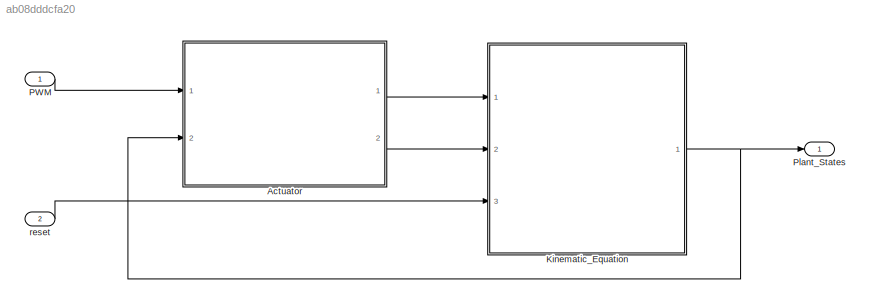
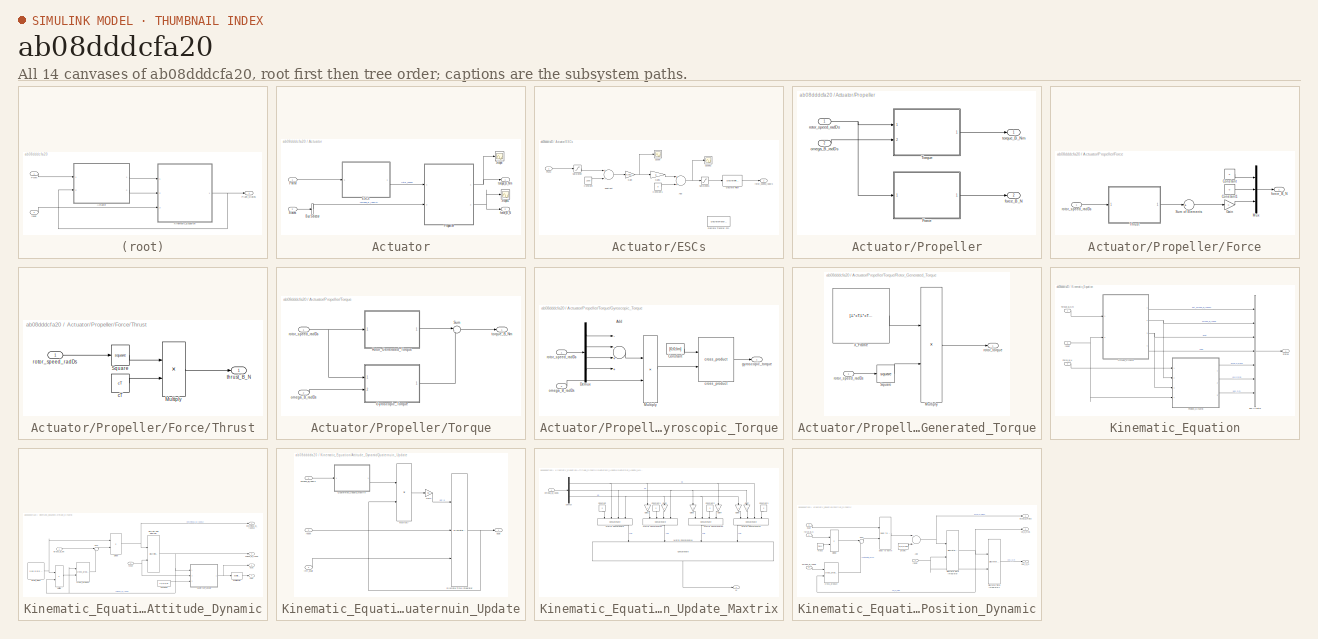
[diagram: thumbnail index - all 14 canvases of the model, root first then tree order]
MODEL slx_ab08dddcfa20
KIND model
CONFIG AbsTol = auto
CONFIG EnableMultiTasking = off
CONFIG FixedStep = auto
CONFIG MaxStep = auto
CONFIG MinStep = auto
CONFIG RelTol = 1e-3
CONFIG SampleTimeConstraint = Unconstrained
CONFIG Solver = VariableStepAuto
CONFIG SolverName = VariableStepAuto
CONFIG StartTime = 0.0
CONFIG StopTime = 10.0
BLOCK [SubSystem] Actuator
  Ports = [2, 2]
  RequestExecContextInheritance = off
BLOCK [BusSelector] Actuator/Bus Selector
  OutputAsBus = off
  OutputSignals = omega_B_radDs
  Ports = [1, 1]
BLOCK [SubSystem] Actuator/ESCs
  Ports = [1, 1]
  RequestExecContextInheritance = off
BLOCK [Sum] Actuator/ESCs/Add
  AccumDataTypeStr = Inherit: Same as first input
  InputSameDT = off
  OutDataTypeStr = Inherit: Inherit via internal rule
  Ports = [2, 1]
  SaturateOnIntegerOverflow = off
BLOCK [Constant] Actuator/ESCs/Constant
  OutDataTypeStr = uint16
  Value = 1000
BLOCK [Constant] Actuator/ESCs/Constant1
  OutDataTypeStr = single
  Value = p
BLOCK [DiscreteFilter] Actuator/ESCs/Discrete Filter
  Denominator = [1 T]
  InputPortMap = u0
  Ports = [1, 1]
BLOCK [DiscreteTransferFcn] Actuator/ESCs/Discrete Transfer Fcn
  Commented = on
  Denominator = [T 1]
  InputPortMap = u0
  OutDataTypeStr = Inherit: Same as input
  Ports = [1, 1]
BLOCK [Gain] Actuator/ESCs/Gain
  Gain = 0.001
  OutDataTypeStr = single
  ParamDataTypeStr = Inherit: Inherit via internal rule
  SaturateOnIntegerOverflow = off
BLOCK [Gain] Actuator/ESCs/Gain1
  Gain = k
  ParamDataTypeStr = Inherit: Inherit via internal rule
  SaturateOnIntegerOverflow = off
BLOCK [Inport] Actuator/ESCs/PWM
  IconDisplay = Port number
BLOCK [Saturate] Actuator/ESCs/Saturation
  InputPortMap = u0
  LowerLimit = 1000
  Ports = [1, 1]
  UpperLimit = 2000
BLOCK [Saturate] Actuator/ESCs/Saturation1
  InputPortMap = u0
  LowerLimit = 0
  Ports = [1, 1]
  UpperLimit = 9999999
BLOCK [Scope] Actuator/ESCs/Scope
  Floating = off
  NumInputPorts = 1
  Ports = [1]
  ScopeSpecificationString = Simulink.scopes.TimeScopeBlockCfg('CurrentConfiguration', extmgr.ConfigurationSet(extmgr.Configuration('Core','General UI',true),extmgr.Configuration('Core','Source UI',true),extmgr.Configuration('Sources','WiredSimulink',true),extmgr.Configuration('Visuals','Time Domain',true,'SerializedDisplays',{struct('MinYLimReal','0.48749','MaxYLimReal','0.61249','YLabelReal','','MinYLimMag','0.48749','MaxYL...<+1465ch>
BLOCK [Scope] Actuator/ESCs/Scope2
  Floating = off
  NumInputPorts = 1
  Ports = [1]
  ScopeSpecificationString = Simulink.scopes.TimeScopeBlockCfg('CurrentConfiguration', extmgr.ConfigurationSet(extmgr.Configuration('Core','General UI',true),extmgr.Configuration('Core','Source UI',true),extmgr.Configuration('Sources','WiredSimulink',true,'DataLoggingVariableName','ScopeData2'),extmgr.Configuration('Visuals','Time Domain',true,'SerializedDisplays',{struct('MinYLimReal','438.50653','MaxYLimReal','528.2651','YL...<+1429ch>
BLOCK [Sum] Actuator/ESCs/Subtract
  AccumDataTypeStr = Inherit: Same as first input
  InputSameDT = off
  Inputs = +-
  OutDataTypeStr = Inherit: Same as accumulator
  Ports = [2, 1]
  SaturateOnIntegerOverflow = off
BLOCK [Outport] Actuator/ESCs/rotor_speed_radDs
  IconDisplay = Port number
BLOCK [Inport] Actuator/PWM
  IconDisplay = Port number
BLOCK [SubSystem] Actuator/Propeller
  Ports = [2, 2]
  RequestExecContextInheritance = off
BLOCK [SubSystem] Actuator/Propeller/Force
  Ports = [1, 1]
  RequestExecContextInheritance = off
BLOCK [Constant] Actuator/Propeller/Force/Constant
  OutDataTypeStr = single
  Value = 0
BLOCK [Constant] Actuator/Propeller/Force/Constant1
  OutDataTypeStr = single
  Value = 0
BLOCK [Gain] Actuator/Propeller/Force/Gain
  Gain = -1
  ParamDataTypeStr = Inherit: Inherit via internal rule
  SaturateOnIntegerOverflow = off
BLOCK [Mux] Actuator/Propeller/Force/Mux
  DisplayOption = bar
  Inputs = 3
  Ports = [3, 1]
BLOCK [Sum] Actuator/Propeller/Force/Sum of Elements
  AccumDataTypeStr = Inherit: Same as first input
  InputSameDT = off
  Inputs = +
  OutDataTypeStr = Inherit: Inherit via internal rule
  Ports = [1, 1]
  SaturateOnIntegerOverflow = off
BLOCK [SubSystem] Actuator/Propeller/Force/Thrust
  Ports = [1, 1]
  RequestExecContextInheritance = off
BLOCK [Product] Actuator/Propeller/Force/Thrust/Multiply
  InputSameDT = off
  Ports = [2, 1]
  RndMeth = Floor
  SaturateOnIntegerOverflow = off
BLOCK [Math] Actuator/Propeller/Force/Thrust/Square
  Operator = square
  Ports = [1, 1]
BLOCK [Constant] Actuator/Propeller/Force/Thrust/cT
  Value = cT
BLOCK [Inport] Actuator/Propeller/Force/Thrust/rotor_speed_radDs
  IconDisplay = Port number
BLOCK [Outport] Actuator/Propeller/Force/Thrust/thrust_B_N
  IconDisplay = Port number
BLOCK [Outport] Actuator/Propeller/Force/force_B_N
  IconDisplay = Port number
BLOCK [Inport] Actuator/Propeller/Force/rotor_speed_radDs
  IconDisplay = Port number
BLOCK [SubSystem] Actuator/Propeller/Torque
  Ports = [2, 1]
  RequestExecContextInheritance = off
BLOCK [SubSystem] Actuator/Propeller/Torque/Gyroscopic_Torque
  Ports = [2, 1]
  RequestExecContextInheritance = off
BLOCK [Sum] Actuator/Propeller/Torque/Gyroscopic_Torque/Add
  InputSameDT = off
  Inputs = --++
  OutDataTypeStr = Inherit: Inherit via internal rule
  Ports = [4, 1]
  SaturateOnIntegerOverflow = off
BLOCK [Constant] Actuator/Propeller/Torque/Gyroscopic_Torque/Constant
  OutDataTypeStr = single
  Value = [0;0;Im]
BLOCK [Demux] Actuator/Propeller/Torque/Gyroscopic_Torque/Demux
  DisplayOption = bar
  Ports = [1, 4]
BLOCK [Product] Actuator/Propeller/Torque/Gyroscopic_Torque/Multiply
  InputSameDT = off
  OutDataTypeStr = Inherit: Inherit via internal rule
  Ports = [2, 1]
  RndMeth = Floor
  SaturateOnIntegerOverflow = off
BLOCK [Reference] Actuator/Propeller/Torque/Gyroscopic_Torque/cross_product  REF=AP_Math/cross_product
  Ports = [2, 1]
  SourceBlock = AP_Math/cross_product
  SourceType = SubSystem
BLOCK [Outport] Actuator/Propeller/Torque/Gyroscopic_Torque/gyroscopic_torque
  IconDisplay = Port number
BLOCK [Inport] Actuator/Propeller/Torque/Gyroscopic_Torque/omega_B_radDs
  IconDisplay = Port number
  Port = 2
BLOCK [Inport] Actuator/Propeller/Torque/Gyroscopic_Torque/rotor_speed_radDs
  IconDisplay = Port number
BLOCK [SubSystem] Actuator/Propeller/Torque/Rotor_Generated_Torque
  Ports = [1, 1]
  RequestExecContextInheritance = off
BLOCK [Product] Actuator/Propeller/Torque/Rotor_Generated_Torque/Multiply
  InputSameDT = off
  Multiplication = Matrix(*)
  OutDataTypeStr = Inherit: Inherit via internal rule
  Ports = [2, 1]
  RndMeth = Floor
  SaturateOnIntegerOverflow = off
BLOCK [Math] Actuator/Propeller/Torque/Rotor_Generated_Torque/Square
  Operator = square
  Ports = [1, 1]
BLOCK [Constant] Actuator/Propeller/Torque/Rotor_Generated_Torque/X_Frame
  OutDataTypeStr = single
  Value = [-L*cT,L*cT,L*cT,-L*cT;L*cT,-L*cT,L*cT,-L*cT;cQ,cQ,-cQ,-cQ]
BLOCK [Inport] Actuator/Propeller/Torque/Rotor_Generated_Torque/rotor_speed_radDs
  IconDisplay = Port number
BLOCK [Outport] Actuator/Propeller/Torque/Rotor_Generated_Torque/rotor_torque
  IconDisplay = Port number
BLOCK [Sum] Actuator/Propeller/Torque/Sum
  IconShape = round
  InputSameDT = off
  Inputs = |++
  OutDataTypeStr = Inherit: Inherit via internal rule
  Ports = [2, 1]
  SaturateOnIntegerOverflow = off
BLOCK [Inport] Actuator/Propeller/Torque/omega_B_radDs
  IconDisplay = Port number
  Port = 2
BLOCK [Inport] Actuator/Propeller/Torque/rotor_speed_radDs
  IconDisplay = Port number
BLOCK [Outport] Actuator/Propeller/Torque/torque_B_Nm
  IconDisplay = Port number
BLOCK [Outport] Actuator/Propeller/force_B_N
  IconDisplay = Port number
  Port = 2
BLOCK [Inport] Actuator/Propeller/omega_B_radDs
  IconDisplay = Port number
  Port = 2
BLOCK [Inport] Actuator/Propeller/rotor_speed_radDs
  IconDisplay = Port number
BLOCK [Outport] Actuator/Propeller/torque_B_Nm
  IconDisplay = Port number
BLOCK [Scope] Actuator/Scope
  Floating = off
  NumInputPorts = 1
  Ports = [1]
  ScopeSpecificationString = Simulink.scopes.TimeScopeBlockCfg('CurrentConfiguration', extmgr.ConfigurationSet(extmgr.Configuration('Core','General UI',true),extmgr.Configuration('Core','Source UI',true),extmgr.Configuration('Sources','WiredSimulink',true,'DataLoggingVariableName','ScopeData1'),extmgr.Configuration('Visuals','Time Domain',true,'SerializedDisplays',{struct('MinYLimReal','-42737826572724298842112.00000','MaxYLi...<+1723ch>
BLOCK [Scope] Actuator/Scope1
  Floating = off
  NumInputPorts = 1
  Ports = [1]
  ScopeSpecificationString = Simulink.scopes.TimeScopeBlockCfg('CurrentConfiguration', extmgr.ConfigurationSet(extmgr.Configuration('Core','General UI',true),extmgr.Configuration('Core','Source UI',true),extmgr.Configuration('Sources','WiredSimulink',true,'DataLoggingVariableName','ScopeData3'),extmgr.Configuration('Visuals','Time Domain',true,'SerializedDisplays',{struct('MinYLimReal','-1370922749869579606649809372446720.000...<+1786ch>
BLOCK [Inport] Actuator/States
  IconDisplay = Port number
  Port = 2
BLOCK [Outport] Actuator/force_B_N
  IconDisplay = Port number
  Port = 2
BLOCK [Outport] Actuator/torque_B_Nm
  IconDisplay = Port number
BLOCK [SubSystem] Kinematic_Equation
  Ports = [3, 1]
  RequestExecContextInheritance = off
BLOCK [SubSystem] Kinematic_Equation/Attitude_Dynamic
  Ports = [2, 4]
  RequestExecContextInheritance = off
BLOCK [Constant] Kinematic_Equation/Attitude_Dynamic/Constant1
  OutDataTypeStr = single
  Value = [1;0;0;0]
BLOCK [DiscreteIntegrator] Kinematic_Equation/Attitude_Dynamic/Discrete-Time Integrator
  ExternalReset = level
  ICPrevOutput = DiscIntNeverNeededParam
  ICPrevScaledInput = DiscIntNeverNeededParam
  InitialCondition = [0;0;0]
  InitialConditionSetting = Auto
  Ports = [2, 1]
  SampleTime = -1
BLOCK [Product] Kinematic_Equation/Attitude_Dynamic/Divide
  InputSameDT = off
  Inputs = /*
  Multiplication = Matrix(*)
  Ports = [2, 1]
  RndMeth = Floor
  SaturateOnIntegerOverflow = off
BLOCK [Constant] Kinematic_Equation/Attitude_Dynamic/Inertia_Matrix
  OutDataTypeStr = single
  Value = [Ixx 0 0;0 Iyy 0;0 0 Izz]
BLOCK [Product] Kinematic_Equation/Attitude_Dynamic/Multiply
  InputSameDT = off
  Multiplication = Matrix(*)
  Ports = [2, 1]
  RndMeth = Floor
  SaturateOnIntegerOverflow = off
BLOCK [SubSystem] Kinematic_Equation/Attitude_Dynamic/Quaternuin_Update
  Ports = [3, 1]
  RequestExecContextInheritance = off
BLOCK [DiscreteIntegrator] Kinematic_Equation/Attitude_Dynamic/Quaternuin_Update/Discrete-Time Integrator
  ExternalReset = level
  ICPrevOutput = DiscIntNeverNeededParam
  ICPrevScaledInput = DiscIntNeverNeededParam
  InitialConditionSetting = Auto
  InitialConditionSource = external
  Ports = [3, 1]
  SampleTime = -1
BLOCK [Gain] Kinematic_Equation/Attitude_Dynamic/Quaternuin_Update/Gain
  Gain = 0.5
  ParamDataTypeStr = Inherit: Inherit via internal rule
  SaturateOnIntegerOverflow = off
BLOCK [Product] Kinematic_Equation/Attitude_Dynamic/Quaternuin_Update/Multiply
  InputSameDT = off
  Multiplication = Matrix(*)
  Ports = [2, 1]
  RndMeth = Floor
  SaturateOnIntegerOverflow = off
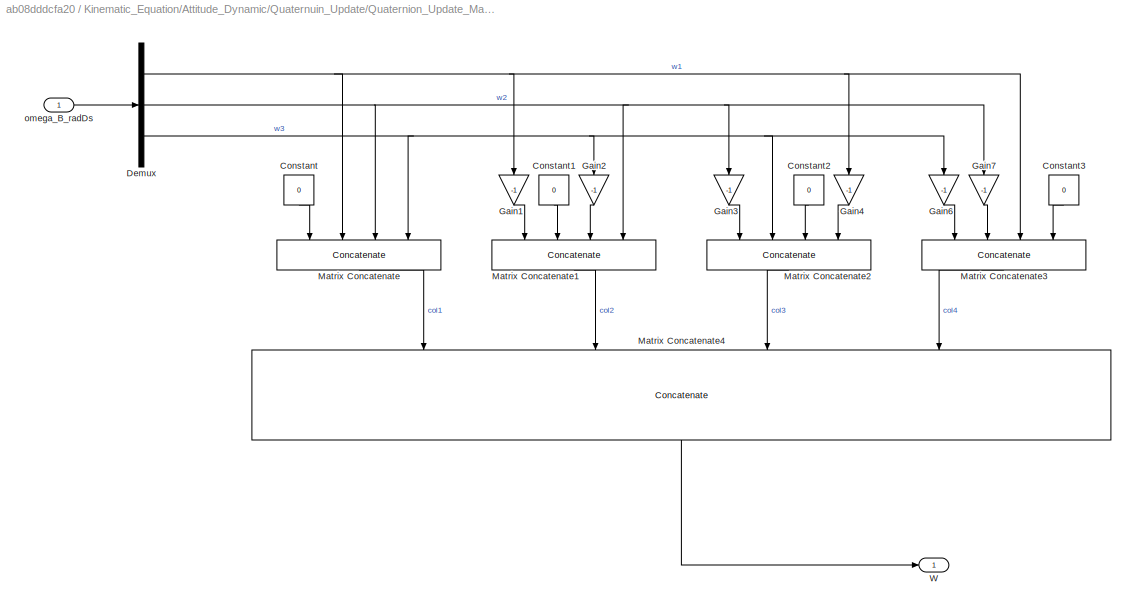
BLOCK [SubSystem] Kinematic_Equation/Attitude_Dynamic/Quaternuin_Update/Quaternion_Update_Maxtrix
  Ports = [1, 1]
  RequestExecContextInheritance = off
BLOCK [Constant] Kinematic_Equation/Attitude_Dynamic/Quaternuin_Update/Quaternion_Update_Maxtrix/Constant
  OutDataTypeStr = single
  Value = 0
BLOCK [Constant] Kinematic_Equation/Attitude_Dynamic/Quaternuin_Update/Quaternion_Update_Maxtrix/Constant1
  OutDataTypeStr = single
  Value = 0
BLOCK [Constant] Kinematic_Equation/Attitude_Dynamic/Quaternuin_Update/Quaternion_Update_Maxtrix/Constant2
  OutDataTypeStr = single
  Value = 0
BLOCK [Constant] Kinematic_Equation/Attitude_Dynamic/Quaternuin_Update/Quaternion_Update_Maxtrix/Constant3
  OutDataTypeStr = single
  Value = 0
BLOCK [Demux] Kinematic_Equation/Attitude_Dynamic/Quaternuin_Update/Quaternion_Update_Maxtrix/Demux
  DisplayOption = bar
  Outputs = 3
  Ports = [1, 3]
BLOCK [Gain] Kinematic_Equation/Attitude_Dynamic/Quaternuin_Update/Quaternion_Update_Maxtrix/Gain1
  Gain = -1
  ParamDataTypeStr = Inherit: Inherit via internal rule
  SaturateOnIntegerOverflow = off
BLOCK [Gain] Kinematic_Equation/Attitude_Dynamic/Quaternuin_Update/Quaternion_Update_Maxtrix/Gain2
  Gain = -1
  ParamDataTypeStr = Inherit: Inherit via internal rule
  SaturateOnIntegerOverflow = off
BLOCK [Gain] Kinematic_Equation/Attitude_Dynamic/Quaternuin_Update/Quaternion_Update_Maxtrix/Gain3
  Gain = -1
  ParamDataTypeStr = Inherit: Inherit via internal rule
  SaturateOnIntegerOverflow = off
BLOCK [Gain] Kinematic_Equation/Attitude_Dynamic/Quaternuin_Update/Quaternion_Update_Maxtrix/Gain4
  Gain = -1
  ParamDataTypeStr = Inherit: Inherit via internal rule
  SaturateOnIntegerOverflow = off
BLOCK [Gain] Kinematic_Equation/Attitude_Dynamic/Quaternuin_Update/Quaternion_Update_Maxtrix/Gain6
  Gain = -1
  ParamDataTypeStr = Inherit: Inherit via internal rule
  SaturateOnIntegerOverflow = off
BLOCK [Gain] Kinematic_Equation/Attitude_Dynamic/Quaternuin_Update/Quaternion_Update_Maxtrix/Gain7
  Gain = -1
  ParamDataTypeStr = Inherit: Inherit via internal rule
  SaturateOnIntegerOverflow = off
BLOCK [Concatenate] Kinematic_Equation/Attitude_Dynamic/Quaternuin_Update/Quaternion_Update_Maxtrix/Matrix Concatenate
  NumInputs = 4
  Ports = [4, 1]
BLOCK [Concatenate] Kinematic_Equation/Attitude_Dynamic/Quaternuin_Update/Quaternion_Update_Maxtrix/Matrix Concatenate1
  NumInputs = 4
  Ports = [4, 1]
BLOCK [Concatenate] Kinematic_Equation/Attitude_Dynamic/Quaternuin_Update/Quaternion_Update_Maxtrix/Matrix Concatenate2
  NumInputs = 4
  Ports = [4, 1]
BLOCK [Concatenate] Kinematic_Equation/Attitude_Dynamic/Quaternuin_Update/Quaternion_Update_Maxtrix/Matrix Concatenate3
  NumInputs = 4
  Ports = [4, 1]
BLOCK [Concatenate] Kinematic_Equation/Attitude_Dynamic/Quaternuin_Update/Quaternion_Update_Maxtrix/Matrix Concatenate4
  ConcatenateDimension = 2
  Mode = Multidimensional array
  NumInputs = 4
  Ports = [4, 1]
BLOCK [Outport] Kinematic_Equation/Attitude_Dynamic/Quaternuin_Update/Quaternion_Update_Maxtrix/W
  IconDisplay = Port number
BLOCK [Inport] Kinematic_Equation/Attitude_Dynamic/Quaternuin_Update/Quaternion_Update_Maxtrix/omega_B_radDs
  IconDisplay = Port number
BLOCK [Inport] Kinematic_Equation/Attitude_Dynamic/Quaternuin_Update/init_quat
  IconDisplay = Port number
  Port = 3
BLOCK [Inport] Kinematic_Equation/Attitude_Dynamic/Quaternuin_Update/omega_B_radDs
  IconDisplay = Port number
BLOCK [Outport] Kinematic_Equation/Attitude_Dynamic/Quaternuin_Update/quat
  IconDisplay = Port number
BLOCK [Inport] Kinematic_Equation/Attitude_Dynamic/Quaternuin_Update/reset
  IconDisplay = Port number
  Port = 2
BLOCK [Sum] Kinematic_Equation/Attitude_Dynamic/Sum
  AccumDataTypeStr = Inherit: Same as first input
  IconShape = round
  InputSameDT = off
  Inputs = |+-
  Ports = [2, 1]
  SaturateOnIntegerOverflow = off
BLOCK [Reference] Kinematic_Equation/Attitude_Dynamic/cross_product  REF=AP_Math/cross_product
  Ports = [2, 1]
  SourceBlock = AP_Math/cross_product
  SourceType = SubSystem
BLOCK [Outport] Kinematic_Equation/Attitude_Dynamic/dot_omega_B_radDs2
  IconDisplay = Port number
BLOCK [Outport] Kinematic_Equation/Attitude_Dynamic/euler
  IconDisplay = Port number
  Port = 4
BLOCK [Outport] Kinematic_Equation/Attitude_Dynamic/omega_B_radDs
  IconDisplay = Port number
  Port = 2
BLOCK [Outport] Kinematic_Equation/Attitude_Dynamic/quat
  IconDisplay = Port number
  Port = 3
BLOCK [Reference] Kinematic_Equation/Attitude_Dynamic/quat to euler  REF=Quaternion/quat to euler
  Ports = [1, 1]
  SourceBlock = Quaternion/quat to euler
  SourceType = SubSystem
BLOCK [Inport] Kinematic_Equation/Attitude_Dynamic/reset
  IconDisplay = Port number
  Port = 2
BLOCK [Inport] Kinematic_Equation/Attitude_Dynamic/torque_B_Nm
  IconDisplay = Port number
BLOCK [BusCreator] Kinematic_Equation/Bus Creator
  DisplayOption = bar
  InheritFromInputs = on
  Inputs = 7
  Ports = [7, 1]
BLOCK [Inport] Kinematic_Equation/Force_B_N
  IconDisplay = Port number
  Port = 2
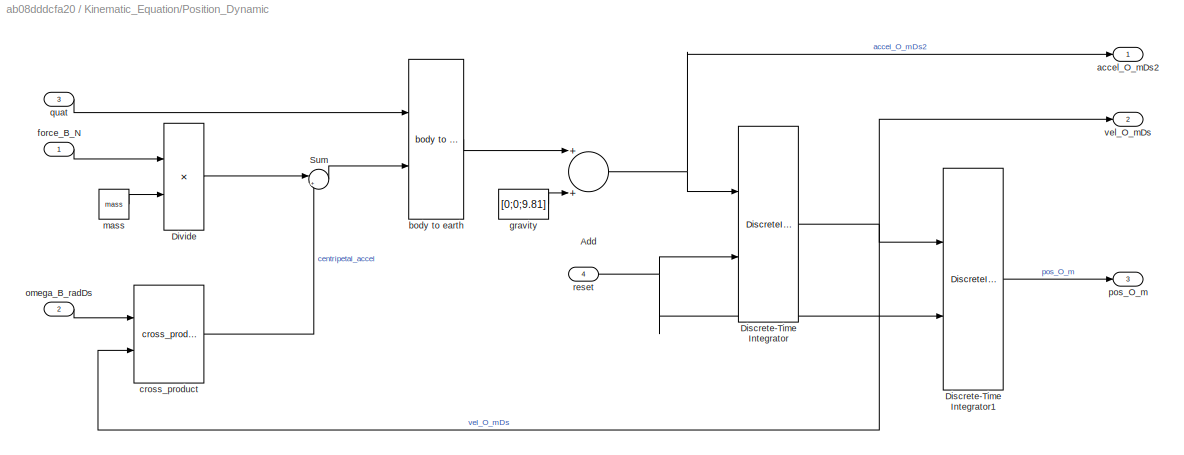
BLOCK [SubSystem] Kinematic_Equation/Position_Dynamic
  Ports = [4, 3]
  RequestExecContextInheritance = off
BLOCK [Sum] Kinematic_Equation/Position_Dynamic/Add
  InputSameDT = off
  OutDataTypeStr = Inherit: Inherit via internal rule
  Ports = [2, 1]
  SaturateOnIntegerOverflow = off
BLOCK [DiscreteIntegrator] Kinematic_Equation/Position_Dynamic/Discrete-Time Integrator
  ExternalReset = level
  ICPrevOutput = DiscIntNeverNeededParam
  ICPrevScaledInput = DiscIntNeverNeededParam
  InitialCondition = [0;0;0]
  InitialConditionSetting = Auto
  Ports = [2, 1]
  SampleTime = -1
BLOCK [DiscreteIntegrator] Kinematic_Equation/Position_Dynamic/Discrete-Time Integrator1
  ExternalReset = level
  ICPrevOutput = DiscIntNeverNeededParam
  ICPrevScaledInput = DiscIntNeverNeededParam
  InitialCondition = [0;0;0]
  InitialConditionSetting = Auto
  Ports = [2, 1]
  SampleTime = -1
BLOCK [Product] Kinematic_Equation/Position_Dynamic/Divide
  InputSameDT = off
  Inputs = */
  OutDataTypeStr = Inherit: Inherit via internal rule
  Ports = [2, 1]
  RndMeth = Floor
  SaturateOnIntegerOverflow = off
BLOCK [Sum] Kinematic_Equation/Position_Dynamic/Sum
  IconShape = round
  InputSameDT = off
  Inputs = |+-
  OutDataTypeStr = Inherit: Inherit via internal rule
  Ports = [2, 1]
  SaturateOnIntegerOverflow = off
BLOCK [Outport] Kinematic_Equation/Position_Dynamic/accel_O_mDs2
  IconDisplay = Port number
BLOCK [Reference] Kinematic_Equation/Position_Dynamic/body to earth  REF=Quaternion/body to earth
  Ports = [2, 1]
  SourceBlock = Quaternion/body to earth
  SourceType = SubSystem
BLOCK [Reference] Kinematic_Equation/Position_Dynamic/cross_product  REF=AP_Math/cross_product
  Ports = [2, 1]
  SourceBlock = AP_Math/cross_product
  SourceType = SubSystem
BLOCK [Inport] Kinematic_Equation/Position_Dynamic/force_B_N
  IconDisplay = Port number
BLOCK [Constant] Kinematic_Equation/Position_Dynamic/gravity
  OutDataTypeStr = single
  Value = [0;0;9.81]
BLOCK [Constant] Kinematic_Equation/Position_Dynamic/mass
  OutDataTypeStr = single
  Value = mass
BLOCK [Inport] Kinematic_Equation/Position_Dynamic/omega_B_radDs
  IconDisplay = Port number
  Port = 2
BLOCK [Outport] Kinematic_Equation/Position_Dynamic/pos_O_m
  IconDisplay = Port number
  Port = 3
BLOCK [Inport] Kinematic_Equation/Position_Dynamic/quat
  IconDisplay = Port number
  Port = 3
BLOCK [Inport] Kinematic_Equation/Position_Dynamic/reset
  IconDisplay = Port number
  Port = 4
BLOCK [Outport] Kinematic_Equation/Position_Dynamic/vel_O_mDs
  IconDisplay = Port number
  Port = 2
BLOCK [Outport] Kinematic_Equation/States
  IconDisplay = Port number
BLOCK [Inport] Kinematic_Equation/Torque_B_Nm
  IconDisplay = Port number
BLOCK [Inport] Kinematic_Equation/reset
  IconDisplay = Port number
  Port = 3
BLOCK [Inport] PWM
  IconDisplay = Port number
BLOCK [Outport] Plant_States
  IconDisplay = Port number
  OutDataTypeStr = Bus: Plant_States
BLOCK [Inport] reset
  IconDisplay = Port number
  Port = 2
LINE Actuator/Bus Selector:1 -> Actuator/Propeller:2
NET Actuator/ESCs/Add:1 -> Actuator/ESCs/Saturation1:1, Actuator/ESCs/Scope2:1
LINE Actuator/ESCs/Constant1:1 -> Actuator/ESCs/Add:2
LINE Actuator/ESCs/Constant:1 -> Actuator/ESCs/Subtract:2
LINE Actuator/ESCs/Discrete Filter:1 -> Actuator/ESCs/rotor_speed_radDs:1
LINE Actuator/ESCs/Gain1:1 -> Actuator/ESCs/Add:1
NET Actuator/ESCs/Gain:1 -> Actuator/ESCs/Gain1:1, Actuator/ESCs/Scope:1
LINE Actuator/ESCs/PWM:1 -> Actuator/ESCs/Saturation:1
LINE Actuator/ESCs/Saturation1:1 -> Actuator/ESCs/Discrete Filter:1
LINE Actuator/ESCs/Saturation:1 -> Actuator/ESCs/Subtract:1
LINE Actuator/ESCs/Subtract:1 -> Actuator/ESCs/Gain:1
LINE Actuator/ESCs:1 -> Actuator/Propeller:1
LINE Actuator/PWM:1 -> Actuator/ESCs:1
LINE Actuator/Propeller/Force/Constant1:1 -> Actuator/Propeller/Force/Mux:2
LINE Actuator/Propeller/Force/Constant:1 -> Actuator/Propeller/Force/Mux:1
LINE Actuator/Propeller/Force/Gain:1 -> Actuator/Propeller/Force/Mux:3
LINE Actuator/Propeller/Force/Mux:1 -> Actuator/Propeller/Force/force_B_N:1
LINE Actuator/Propeller/Force/Sum of Elements:1 -> Actuator/Propeller/Force/Gain:1
LINE Actuator/Propeller/Force/Thrust/Multiply:1 -> Actuator/Propeller/Force/Thrust/thrust_B_N:1
LINE Actuator/Propeller/Force/Thrust/Square:1 -> Actuator/Propeller/Force/Thrust/Multiply:1
LINE Actuator/Propeller/Force/Thrust/cT:1 -> Actuator/Propeller/Force/Thrust/Multiply:2
LINE Actuator/Propeller/Force/Thrust/rotor_speed_radDs:1 -> Actuator/Propeller/Force/Thrust/Square:1
LINE Actuator/Propeller/Force/Thrust:1 -> Actuator/Propeller/Force/Sum of Elements:1
LINE Actuator/Propeller/Force/rotor_speed_radDs:1 -> Actuator/Propeller/Force/Thrust:1
LINE Actuator/Propeller/Force:1 -> Actuator/Propeller/force_B_N:1
LINE Actuator/Propeller/Torque/Gyroscopic_Torque/Add:1 -> Actuator/Propeller/Torque/Gyroscopic_Torque/Multiply:1
LINE Actuator/Propeller/Torque/Gyroscopic_Torque/Constant:1 -> Actuator/Propeller/Torque/Gyroscopic_Torque/cross_product:1
LINE Actuator/Propeller/Torque/Gyroscopic_Torque/Demux:1 -> Actuator/Propeller/Torque/Gyroscopic_Torque/Add:1
LINE Actuator/Propeller/Torque/Gyroscopic_Torque/Demux:2 -> Actuator/Propeller/Torque/Gyroscopic_Torque/Add:2
LINE Actuator/Propeller/Torque/Gyroscopic_Torque/Demux:3 -> Actuator/Propeller/Torque/Gyroscopic_Torque/Add:3
LINE Actuator/Propeller/Torque/Gyroscopic_Torque/Demux:4 -> Actuator/Propeller/Torque/Gyroscopic_Torque/Add:4
LINE Actuator/Propeller/Torque/Gyroscopic_Torque/Multiply:1 -> Actuator/Propeller/Torque/Gyroscopic_Torque/cross_product:2
LINE Actuator/Propeller/Torque/Gyroscopic_Torque/cross_product:1 -> Actuator/Propeller/Torque/Gyroscopic_Torque/gyroscopic_torque:1
LINE Actuator/Propeller/Torque/Gyroscopic_Torque/omega_B_radDs:1 -> Actuator/Propeller/Torque/Gyroscopic_Torque/Multiply:2
LINE Actuator/Propeller/Torque/Gyroscopic_Torque/rotor_speed_radDs:1 -> Actuator/Propeller/Torque/Gyroscopic_Torque/Demux:1
LINE Actuator/Propeller/Torque/Gyroscopic_Torque:1 -> Actuator/Propeller/Torque/Sum:2
LINE Actuator/Propeller/Torque/Rotor_Generated_Torque/Multiply:1 -> Actuator/Propeller/Torque/Rotor_Generated_Torque/rotor_torque:1
LINE Actuator/Propeller/Torque/Rotor_Generated_Torque/Square:1 -> Actuator/Propeller/Torque/Rotor_Generated_Torque/Multiply:2
LINE Actuator/Propeller/Torque/Rotor_Generated_Torque/X_Frame:1 -> Actuator/Propeller/Torque/Rotor_Generated_Torque/Multiply:1
LINE Actuator/Propeller/Torque/Rotor_Generated_Torque/rotor_speed_radDs:1 -> Actuator/Propeller/Torque/Rotor_Generated_Torque/Square:1
LINE Actuator/Propeller/Torque/Rotor_Generated_Torque:1 -> Actuator/Propeller/Torque/Sum:1
LINE Actuator/Propeller/Torque/Sum:1 -> Actuator/Propeller/Torque/torque_B_Nm:1
LINE Actuator/Propeller/Torque/omega_B_radDs:1 -> Actuator/Propeller/Torque/Gyroscopic_Torque:2
NET Actuator/Propeller/Torque/rotor_speed_radDs:1 -> Actuator/Propeller/Torque/Gyroscopic_Torque:1, Actuator/Propeller/Torque/Rotor_Generated_Torque:1
LINE Actuator/Propeller/Torque:1 -> Actuator/Propeller/torque_B_Nm:1
LINE Actuator/Propeller/omega_B_radDs:1 -> Actuator/Propeller/Torque:2
NET Actuator/Propeller/rotor_speed_radDs:1 -> Actuator/Propeller/Force:1, Actuator/Propeller/Torque:1
NET Actuator/Propeller:1 -> Actuator/Scope:1, Actuator/torque_B_Nm:1
NET Actuator/Propeller:2 -> Actuator/Scope1:1, Actuator/force_B_N:1
LINE Actuator/States:1 -> Actuator/Bus Selector:1
LINE Actuator:1 -> Kinematic_Equation:1
LINE Actuator:2 -> Kinematic_Equation:2
LINE Kinematic_Equation/Attitude_Dynamic/Constant1:1 -> Kinematic_Equation/Attitude_Dynamic/Quaternuin_Update:3
NET Kinematic_Equation/Attitude_Dynamic/Discrete-Time Integrator:1 -> Kinematic_Equation/Attitude_Dynamic/Multiply:2, Kinematic_Equation/Attitude_Dynamic/Quaternuin_Update:1, Kinematic_Equation/Attitude_Dynamic/cross_product:1, Kinematic_Equation/Attitude_Dynamic/omega_B_radDs:1
NET Kinematic_Equation/Attitude_Dynamic/Divide:1 -> Kinematic_Equation/Attitude_Dynamic/Discrete-Time Integrator:1, Kinematic_Equation/Attitude_Dynamic/dot_omega_B_radDs2:1
NET Kinematic_Equation/Attitude_Dynamic/Inertia_Matrix:1 -> Kinematic_Equation/Attitude_Dynamic/Divide:1, Kinematic_Equation/Attitude_Dynamic/Multiply:1
LINE Kinematic_Equation/Attitude_Dynamic/Multiply:1 -> Kinematic_Equation/Attitude_Dynamic/cross_product:2
NET Kinematic_Equation/Attitude_Dynamic/Quaternuin_Update/Discrete-Time Integrator:1 -> Kinematic_Equation/Attitude_Dynamic/Quaternuin_Update/Multiply:2, Kinematic_Equation/Attitude_Dynamic/Quaternuin_Update/quat:1
LINE Kinematic_Equation/Attitude_Dynamic/Quaternuin_Update/Gain:1 -> Kinematic_Equation/Attitude_Dynamic/Quaternuin_Update/Discrete-Time Integrator:1
LINE Kinematic_Equation/Attitude_Dynamic/Quaternuin_Update/Multiply:1 -> Kinematic_Equation/Attitude_Dynamic/Quaternuin_Update/Gain:1
LINE Kinematic_Equation/Attitude_Dynamic/Quaternuin_Update/Quaternion_Update_Maxtrix/Constant1:1 -> Kinematic_Equation/Attitude_Dynamic/Quaternuin_Update/Quaternion_Update_Maxtrix/Matrix Concatenate1:2
LINE Kinematic_Equation/Attitude_Dynamic/Quaternuin_Update/Quaternion_Update_Maxtrix/Constant2:1 -> Kinematic_Equation/Attitude_Dynamic/Quaternuin_Update/Quaternion_Update_Maxtrix/Matrix Concatenate2:3
LINE Kinematic_Equation/Attitude_Dynamic/Quaternuin_Update/Quaternion_Update_Maxtrix/Constant3:1 -> Kinematic_Equation/Attitude_Dynamic/Quaternuin_Update/Quaternion_Update_Maxtrix/Matrix Concatenate3:4
LINE Kinematic_Equation/Attitude_Dynamic/Quaternuin_Update/Quaternion_Update_Maxtrix/Constant:1 -> Kinematic_Equation/Attitude_Dynamic/Quaternuin_Update/Quaternion_Update_Maxtrix/Matrix Concatenate:1
NET Kinematic_Equation/Attitude_Dynamic/Quaternuin_Update/Quaternion_Update_Maxtrix/Demux:1 -> Kinematic_Equation/Attitude_Dynamic/Quaternuin_Update/Quaternion_Update_Maxtrix/Gain1:1, Kinematic_Equation/Attitude_Dynamic/Quaternuin_Update/Quaternion_Update_Maxtrix/Gain4:1, Kinematic_Equation/Attitude_Dynamic/Quaternuin_Update/Quaternion_Update_Maxtrix/Matrix Concatenate3:3, Kinematic_Equation/Attitude_Dynamic/Quaternuin_Update/Quaternion_Update_Maxtrix/Matrix Concatenate:2
NET Kinematic_Equation/Attitude_Dynamic/Quaternuin_Update/Quaternion_Update_Maxtrix/Demux:2 -> Kinematic_Equation/Attitude_Dynamic/Quaternuin_Update/Quaternion_Update_Maxtrix/Gain3:1, Kinematic_Equation/Attitude_Dynamic/Quaternuin_Update/Quaternion_Update_Maxtrix/Gain7:1, Kinematic_Equation/Attitude_Dynamic/Quaternuin_Update/Quaternion_Update_Maxtrix/Matrix Concatenate1:4, Kinematic_Equation/Attitude_Dynamic/Quaternuin_Update/Quaternion_Update_Maxtrix/Matrix Concatenate:3
NET Kinematic_Equation/Attitude_Dynamic/Quaternuin_Update/Quaternion_Update_Maxtrix/Demux:3 -> Kinematic_Equation/Attitude_Dynamic/Quaternuin_Update/Quaternion_Update_Maxtrix/Gain2:1, Kinematic_Equation/Attitude_Dynamic/Quaternuin_Update/Quaternion_Update_Maxtrix/Gain6:1, Kinematic_Equation/Attitude_Dynamic/Quaternuin_Update/Quaternion_Update_Maxtrix/Matrix Concatenate2:2, Kinematic_Equation/Attitude_Dynamic/Quaternuin_Update/Quaternion_Update_Maxtrix/Matrix Concatenate:4
LINE Kinematic_Equation/Attitude_Dynamic/Quaternuin_Update/Quaternion_Update_Maxtrix/Gain1:1 -> Kinematic_Equation/Attitude_Dynamic/Quaternuin_Update/Quaternion_Update_Maxtrix/Matrix Concatenate1:1
LINE Kinematic_Equation/Attitude_Dynamic/Quaternuin_Update/Quaternion_Update_Maxtrix/Gain2:1 -> Kinematic_Equation/Attitude_Dynamic/Quaternuin_Update/Quaternion_Update_Maxtrix/Matrix Concatenate1:3
LINE Kinematic_Equation/Attitude_Dynamic/Quaternuin_Update/Quaternion_Update_Maxtrix/Gain3:1 -> Kinematic_Equation/Attitude_Dynamic/Quaternuin_Update/Quaternion_Update_Maxtrix/Matrix Concatenate2:1
LINE Kinematic_Equation/Attitude_Dynamic/Quaternuin_Update/Quaternion_Update_Maxtrix/Gain4:1 -> Kinematic_Equation/Attitude_Dynamic/Quaternuin_Update/Quaternion_Update_Maxtrix/Matrix Concatenate2:4
LINE Kinematic_Equation/Attitude_Dynamic/Quaternuin_Update/Quaternion_Update_Maxtrix/Gain6:1 -> Kinematic_Equation/Attitude_Dynamic/Quaternuin_Update/Quaternion_Update_Maxtrix/Matrix Concatenate3:1
LINE Kinematic_Equation/Attitude_Dynamic/Quaternuin_Update/Quaternion_Update_Maxtrix/Gain7:1 -> Kinematic_Equation/Attitude_Dynamic/Quaternuin_Update/Quaternion_Update_Maxtrix/Matrix Concatenate3:2
LINE Kinematic_Equation/Attitude_Dynamic/Quaternuin_Update/Quaternion_Update_Maxtrix/Matrix Concatenate1:1 -> Kinematic_Equation/Attitude_Dynamic/Quaternuin_Update/Quaternion_Update_Maxtrix/Matrix Concatenate4:2
LINE Kinematic_Equation/Attitude_Dynamic/Quaternuin_Update/Quaternion_Update_Maxtrix/Matrix Concatenate2:1 -> Kinematic_Equation/Attitude_Dynamic/Quaternuin_Update/Quaternion_Update_Maxtrix/Matrix Concatenate4:3
LINE Kinematic_Equation/Attitude_Dynamic/Quaternuin_Update/Quaternion_Update_Maxtrix/Matrix Concatenate3:1 -> Kinematic_Equation/Attitude_Dynamic/Quaternuin_Update/Quaternion_Update_Maxtrix/Matrix Concatenate4:4
LINE Kinematic_Equation/Attitude_Dynamic/Quaternuin_Update/Quaternion_Update_Maxtrix/Matrix Concatenate4:1 -> Kinematic_Equation/Attitude_Dynamic/Quaternuin_Update/Quaternion_Update_Maxtrix/W:1
LINE Kinematic_Equation/Attitude_Dynamic/Quaternuin_Update/Quaternion_Update_Maxtrix/Matrix Concatenate:1 -> Kinematic_Equation/Attitude_Dynamic/Quaternuin_Update/Quaternion_Update_Maxtrix/Matrix Concatenate4:1
LINE Kinematic_Equation/Attitude_Dynamic/Quaternuin_Update/Quaternion_Update_Maxtrix/omega_B_radDs:1 -> Kinematic_Equation/Attitude_Dynamic/Quaternuin_Update/Quaternion_Update_Maxtrix/Demux:1
LINE Kinematic_Equation/Attitude_Dynamic/Quaternuin_Update/Quaternion_Update_Maxtrix:1 -> Kinematic_Equation/Attitude_Dynamic/Quaternuin_Update/Multiply:1
LINE Kinematic_Equation/Attitude_Dynamic/Quaternuin_Update/init_quat:1 -> Kinematic_Equation/Attitude_Dynamic/Quaternuin_Update/Discrete-Time Integrator:3
LINE Kinematic_Equation/Attitude_Dynamic/Quaternuin_Update/omega_B_radDs:1 -> Kinematic_Equation/Attitude_Dynamic/Quaternuin_Update/Quaternion_Update_Maxtrix:1
LINE Kinematic_Equation/Attitude_Dynamic/Quaternuin_Update/reset:1 -> Kinematic_Equation/Attitude_Dynamic/Quaternuin_Update/Discrete-Time Integrator:2
NET Kinematic_Equation/Attitude_Dynamic/Quaternuin_Update:1 -> Kinematic_Equation/Attitude_Dynamic/quat to euler:1, Kinematic_Equation/Attitude_Dynamic/quat:1
LINE Kinematic_Equation/Attitude_Dynamic/Sum:1 -> Kinematic_Equation/Attitude_Dynamic/Divide:2
LINE Kinematic_Equation/Attitude_Dynamic/cross_product:1 -> Kinematic_Equation/Attitude_Dynamic/Sum:2
LINE Kinematic_Equation/Attitude_Dynamic/quat to euler:1 -> Kinematic_Equation/Attitude_Dynamic/euler:1
NET Kinematic_Equation/Attitude_Dynamic/reset:1 -> Kinematic_Equation/Attitude_Dynamic/Discrete-Time Integrator:2, Kinematic_Equation/Attitude_Dynamic/Quaternuin_Update:2
LINE Kinematic_Equation/Attitude_Dynamic/torque_B_Nm:1 -> Kinematic_Equation/Attitude_Dynamic/Sum:1
LINE Kinematic_Equation/Attitude_Dynamic:1 -> Kinematic_Equation/Bus Creator:1
NET Kinematic_Equation/Attitude_Dynamic:2 -> Kinematic_Equation/Bus Creator:2, Kinematic_Equation/Position_Dynamic:2
NET Kinematic_Equation/Attitude_Dynamic:3 -> Kinematic_Equation/Bus Creator:3, Kinematic_Equation/Position_Dynamic:3
LINE Kinematic_Equation/Attitude_Dynamic:4 -> Kinematic_Equation/Bus Creator:4
LINE Kinematic_Equation/Bus Creator:1 -> Kinematic_Equation/States:1
LINE Kinematic_Equation/Force_B_N:1 -> Kinematic_Equation/Position_Dynamic:1
NET Kinematic_Equation/Position_Dynamic/Add:1 -> Kinematic_Equation/Position_Dynamic/Discrete-Time Integrator:1, Kinematic_Equation/Position_Dynamic/accel_O_mDs2:1
LINE Kinematic_Equation/Position_Dynamic/Discrete-Time Integrator1:1 -> Kinematic_Equation/Position_Dynamic/pos_O_m:1
NET Kinematic_Equation/Position_Dynamic/Discrete-Time Integrator:1 -> Kinematic_Equation/Position_Dynamic/Discrete-Time Integrator1:1, Kinematic_Equation/Position_Dynamic/cross_product:2, Kinematic_Equation/Position_Dynamic/vel_O_mDs:1
LINE Kinematic_Equation/Position_Dynamic/Divide:1 -> Kinematic_Equation/Position_Dynamic/Sum:1
LINE Kinematic_Equation/Position_Dynamic/Sum:1 -> Kinematic_Equation/Position_Dynamic/body to earth:2
LINE Kinematic_Equation/Position_Dynamic/body to earth:1 -> Kinematic_Equation/Position_Dynamic/Add:1
LINE Kinematic_Equation/Position_Dynamic/cross_product:1 -> Kinematic_Equation/Position_Dynamic/Sum:2
LINE Kinematic_Equation/Position_Dynamic/force_B_N:1 -> Kinematic_Equation/Position_Dynamic/Divide:1
LINE Kinematic_Equation/Position_Dynamic/gravity:1 -> Kinematic_Equation/Position_Dynamic/Add:2
LINE Kinematic_Equation/Position_Dynamic/mass:1 -> Kinematic_Equation/Position_Dynamic/Divide:2
LINE Kinematic_Equation/Position_Dynamic/omega_B_radDs:1 -> Kinematic_Equation/Position_Dynamic/cross_product:1
LINE Kinematic_Equation/Position_Dynamic/quat:1 -> Kinematic_Equation/Position_Dynamic/body to earth:1
NET Kinematic_Equation/Position_Dynamic/reset:1 -> Kinematic_Equation/Position_Dynamic/Discrete-Time Integrator1:2, Kinematic_Equation/Position_Dynamic/Discrete-Time Integrator:2
LINE Kinematic_Equation/Position_Dynamic:1 -> Kinematic_Equation/Bus Creator:5
LINE Kinematic_Equation/Position_Dynamic:2 -> Kinematic_Equation/Bus Creator:6
LINE Kinematic_Equation/Position_Dynamic:3 -> Kinematic_Equation/Bus Creator:7
LINE Kinematic_Equation/Torque_B_Nm:1 -> Kinematic_Equation/Attitude_Dynamic:1
NET Kinematic_Equation/reset:1 -> Kinematic_Equation/Attitude_Dynamic:2, Kinematic_Equation/Position_Dynamic:4
NET Kinematic_Equation:1 -> Actuator:2, Plant_States:1
LINE PWM:1 -> Actuator:1
LINE reset:1 -> Kinematic_Equation:3
note: NET lines group one-source signal fan-out (src -> all destinations, sorted); 1:1 wires keep LINE
